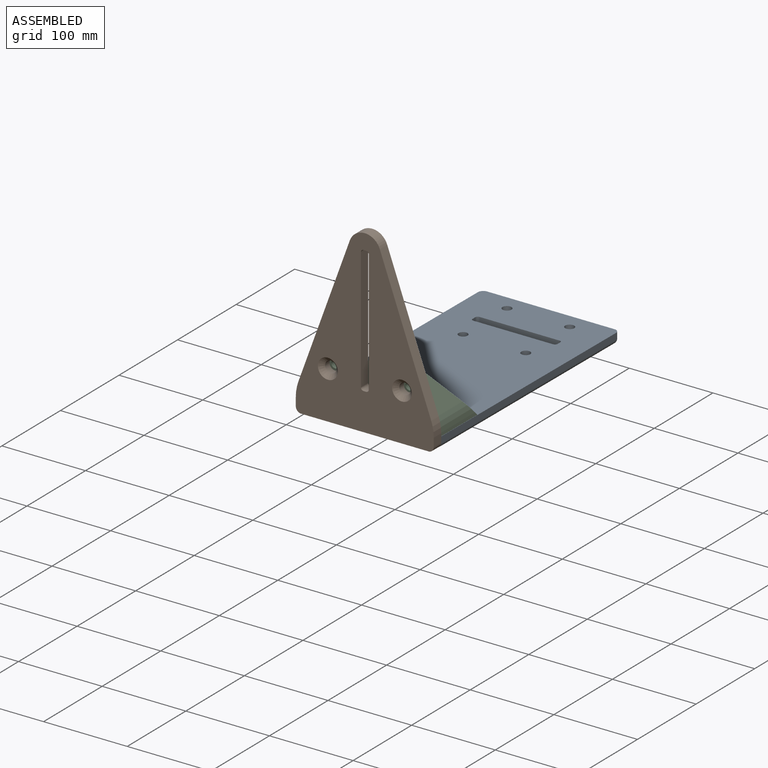
[diagram: assembled view]
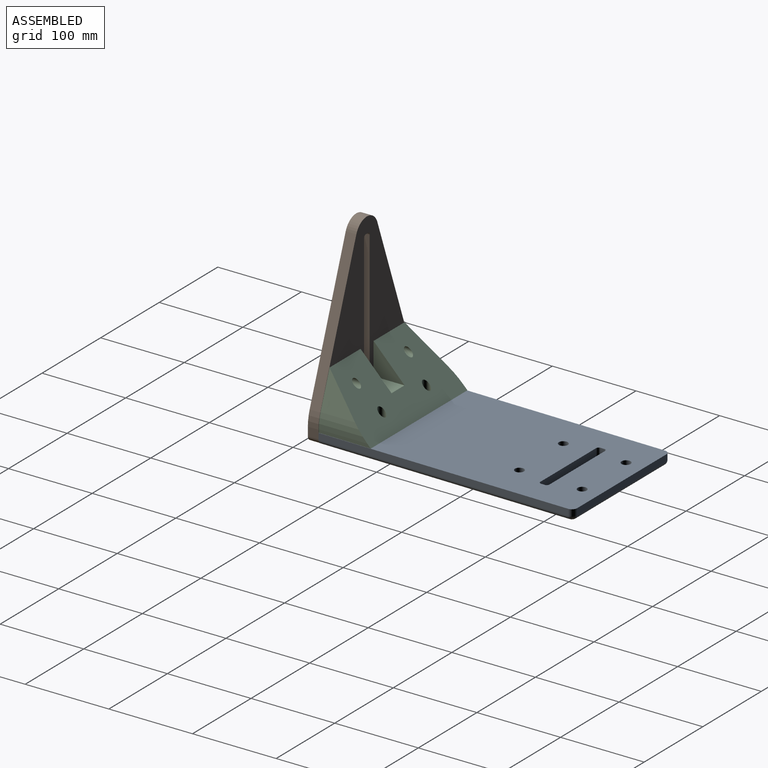
[diagram: assembled view, second angle]
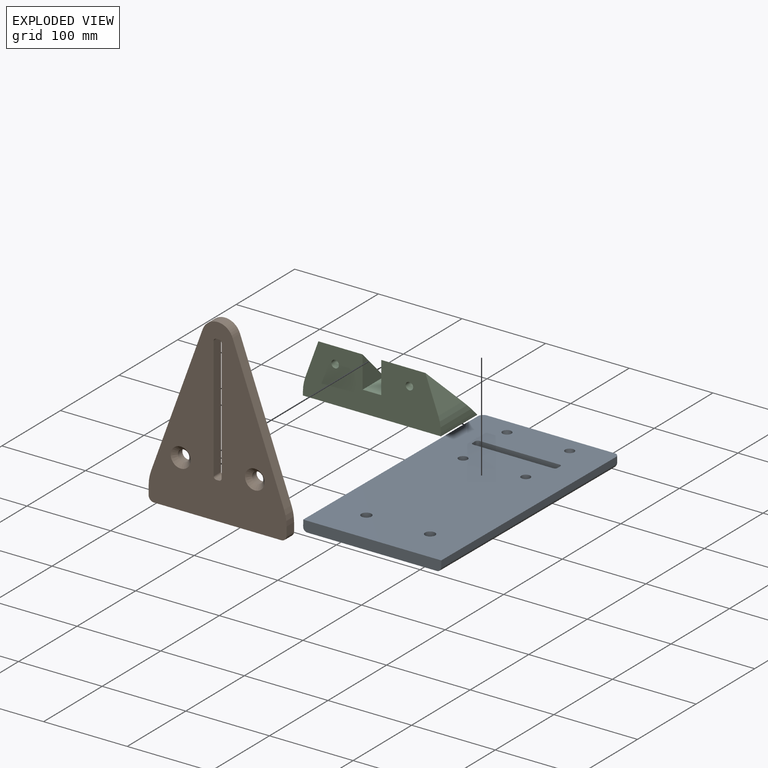
[diagram: exploded view]
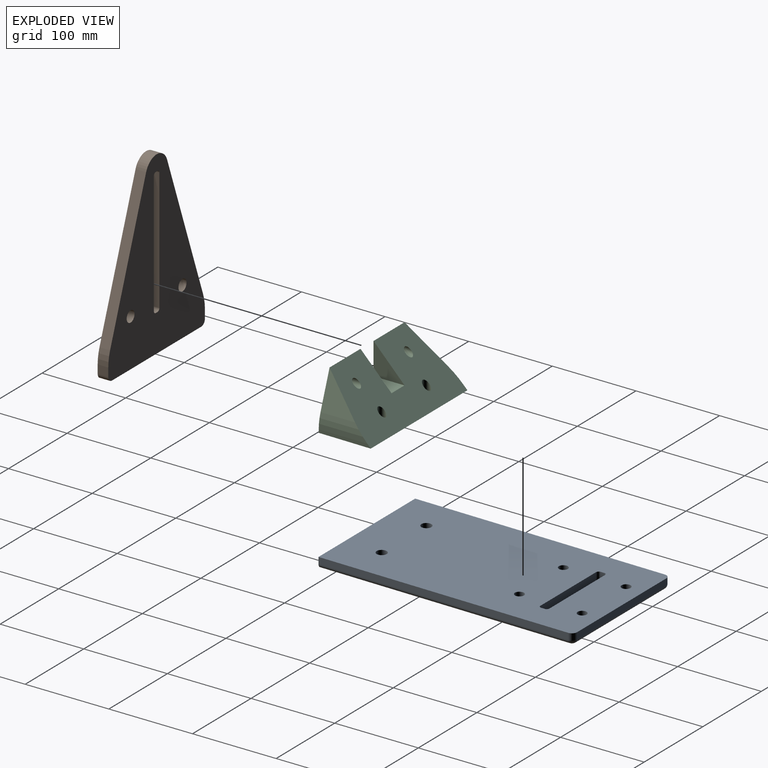
[diagram: exploded view, second angle]
ASSEMBLY  parts=3 mates=2
PART A: 29 faces, bbox 165x12.7x304.8 mm
  f0: cylinder r=3.17mm len=12.7mm, axis (0,1,0), area 63.3mm2, adj f1,f17,f18,f19
  f1: plane 95.25x12.7mm, normal (0,0,1), area 1209.7mm2, adj f0,f2,f18,f19
  f2: cylinder r=3.18mm len=12.7mm, axis (0,1,0), area 63.3mm2, adj f1,f3,f18,f19
  f3: plane 12.7x4.45mm, normal (-1,0,0), area 56.5mm2, adj f2,f4,f18,f19
  f4: cylinder r=3.17mm len=12.7mm, axis (0,1,0), area 63.3mm2, adj f3,f5,f18,f19
  f5: plane 95.25x12.7mm, normal (0,0,-1), area 1209.7mm2, adj f4,f6,f18,f19
  f6: cylinder r=3.17mm len=12.7mm, axis (0,1,0), area 63.3mm2, adj f5,f17,f18,f19
  f7: plane 298.45x7.62mm, normal (1,0,0), area 2274.2mm2, adj f8,f16,f19,f20
  f8: cylinder r=6.35mm len=7.62mm, axis (0,1,0), area 76mm2, adj f7,f9,f19,f21
  f9: plane 152.3x7.62mm, normal (0,0,-1), area 1160.5mm2, adj f8,f10,f19,f22
  f10: cylinder r=6.35mm len=7.62mm, axis (0,1,0), area 76mm2, adj f9,f11,f19,f23
  f11: plane 298.45x7.62mm, normal (-1,0,0), area 2274.2mm2, adj f10,f16,f19,f24
  f12: cylinder r=5.4mm len=12.7mm, axis (0,1,0), area 430.7mm2, adj f18,f19
  f13: cylinder r=5.4mm len=12.7mm, axis (0,1,0), area 430.7mm2, adj f18,f19
  f14: cylinder r=5.4mm len=12.7mm, axis (0,1,0), area 430.7mm2, adj f18,f19
  f15: cylinder r=5.4mm len=12.7mm, axis (0,1,0), area 430.7mm2, adj f18,f19
  f16: plane 165x12.7mm, normal (0,0,1), area 2084.4mm2, adj f7,f11,f18,f19,f20,f24
  f17: plane 12.7x4.45mm, normal (1,0,0), area 56.5mm2, adj f0,f6,f18,f19
  f18: plane 299.72x154.84mm, normal (0,-1,0), area 43992.3mm2, adj f0,f1,f2,f3,f4,f5,f6,f12
  f19: plane 304.8x165mm, normal (0,1,0), area 48592.8mm2, adj f0,f1,f2,f3,f4,f5,f6,f7
  f20: cylinder r=5.08mm len=298.45mm, axis (0,0,1), area 2381.5mm2, adj f7,f16,f18,f21
  f21: torus R=1.27mm, axis (0,1,0), area 56.5mm2, adj f8,f18,f20,f22
  f22: cylinder r=5.08mm len=152.3mm, axis (1,0,0), area 1215.3mm2, adj f9,f18,f21,f23
  f23: torus R=1.27mm, axis (0,1,0), area 56.5mm2, adj f10,f18,f22,f24
  f24: cylinder r=5.08mm len=298.45mm, axis (0,0,-1), area 2381.5mm2, adj f11,f16,f18,f23
  f25: cylinder r=6.02mm len=12.04mm, axis (0,-1,0), area 240.2mm2, adj f19,f27
  f26: cylinder r=6.02mm len=12.04mm, axis (0,-1,0), area 240.2mm2, adj f19,f28
  f27: cone r=6.02mm half-angle=45deg, axis (0,-1,0), area 518.8mm2, adj f18,f25
  f28: cone r=6.02mm half-angle=45deg, axis (0,-1,0), area 518.8mm2, adj f18,f26
PART B: 24 faces, bbox 165x12.7x215.4 mm
  f0: cylinder r=19.05mm len=35.8mm, axis (0,1,0), area 591.2mm2, adj f1,f19,f20,f21
  f1: plane 169.07x61.54mm, normal (-0.94,0,0.34), area 2284.9mm2, adj f0,f2,f20,f21
  f2: cylinder r=50.8mm len=17.38mm, axis (0,1,0), area 225.2mm2, adj f1,f3,f20,f21
  f3: plane 12.7x10.09mm, normal (-1,0,0), area 128.2mm2, adj f2,f4,f20,f21
  f4: cylinder r=6.35mm len=12.7mm, axis (0,1,0), area 126.7mm2, adj f3,f5,f20,f21
  f5: plane 152.3x12.7mm, normal (0,0,-1), area 1934.2mm2, adj f4,f6,f20,f21
  f6: cylinder r=6.35mm len=12.7mm, axis (0,1,0), area 126.7mm2, adj f5,f7,f20,f21
  f7: plane 12.7x10.09mm, normal (1,0,0), area 128.2mm2, adj f6,f8,f20,f21
  f8: cylinder r=50.8mm len=17.38mm, axis (0,1,0), area 225.2mm2, adj f7,f19,f20,f21
  f9: cylinder r=3.18mm len=12.7mm, axis (0,1,0), area 63.3mm2, adj f10,f18,f20,f21
  f10: plane 146.05x12.72mm, normal (-1,0,0), area 1854.8mm2, adj f9,f11,f20,f21
  f11: cylinder r=3.17mm len=12.7mm, axis (0,1,0), area 63.3mm2, adj f10,f12,f20,f21
  f12: plane 12.7x3.18mm, normal (0,0,1), area 40.3mm2, adj f11,f13,f20,f21
  f13: cylinder r=3.18mm len=12.7mm, axis (0,1,0), area 63.3mm2, adj f12,f14,f20,f21
  f14: plane 146.05x12.72mm, normal (1,0,0), area 1854.8mm2, adj f13,f15,f20,f21
  f15: cylinder r=3.17mm len=12.7mm, axis (0,1,0), area 63.3mm2, adj f14,f18,f20,f21
  f16: cylinder r=6.67mm len=13.34mm, axis (0,1,0), area 319.2mm2, adj f21,f23
  f17: cylinder r=6.86mm len=13.73mm, axis (0,1,0), area 328.5mm2, adj f21,f22
  f18: plane 12.7x3.18mm, normal (0,0,-1), area 40.3mm2, adj f9,f15,f20,f21
  f19: plane 169.07x61.54mm, normal (0.94,0,0.34), area 2284.9mm2, adj f0,f8,f20,f21
  f20: plane 215.42x165mm, normal (0,-1,0), area 19986.2mm2, adj f0,f1,f2,f3,f4,f5,f6,f7
  f21: plane 215.42x165mm, normal (0,1,0), area 20580.2mm2, adj f0,f1,f2,f3,f4,f5,f6,f7
  f22: cone r=6.86mm half-angle=45deg, axis (0,-1,0), area 424.4mm2, adj f17,f20
  f23: cone r=6.67mm half-angle=45deg, axis (0,-1,0), area 415.6mm2, adj f16,f20
PART C: 18 faces, bbox 167x65.4x64.5 mm
  f0: plane 166.96x65.36mm, normal (0,0.7,-0.71), area 11853.8mm2, adj f1,f2,f3,f4,f5,f6,f7,f8
  f1: plane 165.1x63.5mm, normal (0,-0.01,1), area 8554.1mm2, adj f0,f4,f5,f6,f7,f8,f9,f10
  f2: plane 62.23x0.44mm, normal (1,0,0), area 13.7mm2, adj f0,f4,f8
  f3: plane 62.23x0.44mm, normal (-1,0,0), area 13.7mm2, adj f0,f4,f11
  f4: plane 165.1x62.23mm, normal (0,-1,0), area 10144.5mm2, adj f0,f1,f2,f3,f16,f17
  f5: cylinder r=4.49mm len=23.28mm, axis (0,-0.01,1), area 531.2mm2, adj f0,f1
  f6: plane 42.38x41.55mm, normal (0.94,0.34,0), area 930.1mm2, adj f0,f1,f7
  f7: cylinder r=50.8mm len=58.28mm, axis (0,-0.01,1), area 881.3mm2, adj f0,f1,f6,f8
  f8: plane 61.82x4.16mm, normal (1,0.01,0), area 224.5mm2, adj f0,f1,f2,f7
  f9: plane 42.38x41.55mm, normal (-0.94,0.34,0), area 930.1mm2, adj f0,f1,f10
  f10: cylinder r=50.8mm len=58.28mm, axis (0,-0.01,1), area 881.3mm2, adj f0,f1,f9,f11
  f11: plane 61.82x4.16mm, normal (-1,0.01,0), area 224.5mm2, adj f0,f1,f3,f10
  f12: plane 38.1x37.35mm, normal (-1,0,0), area 706.3mm2, adj f0,f1,f14
  f13: plane 38.1x37.35mm, normal (1,0,0), area 706.3mm2, adj f0,f1,f14
  f14: plane 37.08x22.23mm, normal (0,1,0.01), area 824mm2, adj f0,f1,f12,f13
  f15: cylinder r=4.55mm len=23.27mm, axis (0,-0.01,1), area 537.3mm2, adj f0,f1
  f16: cylinder r=4.54mm len=22.65mm, axis (0,-1,0), area 513.3mm2, adj f0,f4
  f17: cylinder r=4.54mm len=22.46mm, axis (0,-1,0), area 508mm2, adj f0,f4
PLACE A rot(axis=(1,0,0),89.6deg) t=(-51.72,144.65,-67.29)mm
PLACE B t=(-51.67,-3.15,23.52)mm
PLACE C rot(axis=(1,0,0),89.6deg) t=(-52.08,23.31,-39.64)mm
MATE fastened C.f5 <-> B.f16  axis (0,-1,0) through (-7.27,-7.8,-27.03)mm
MATE fastened A.f25 <-> C.f16  axis (0,0.01,1) through (-13.62,36.66,-71.48)mm
